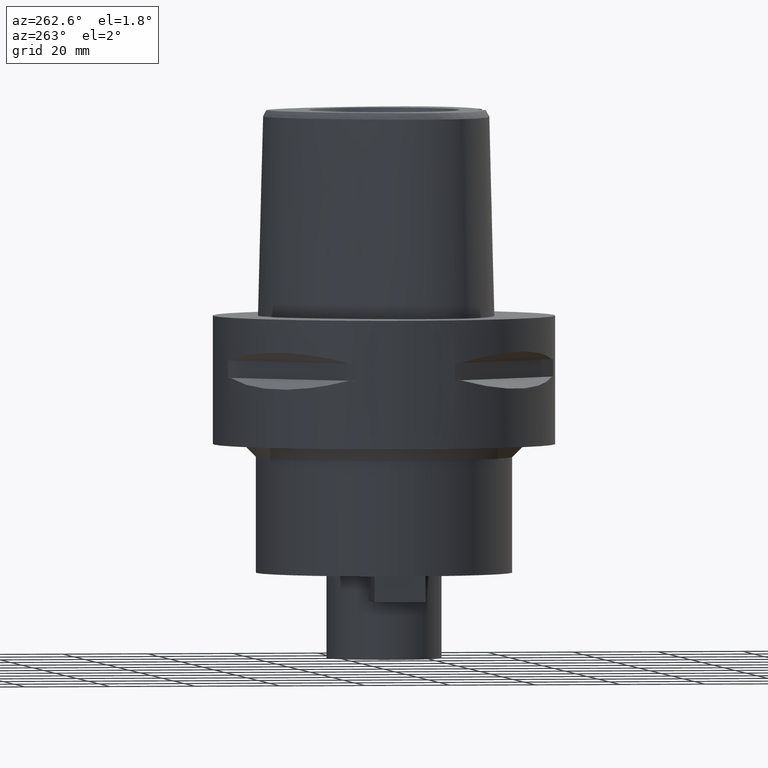
[diagram: clean part render]
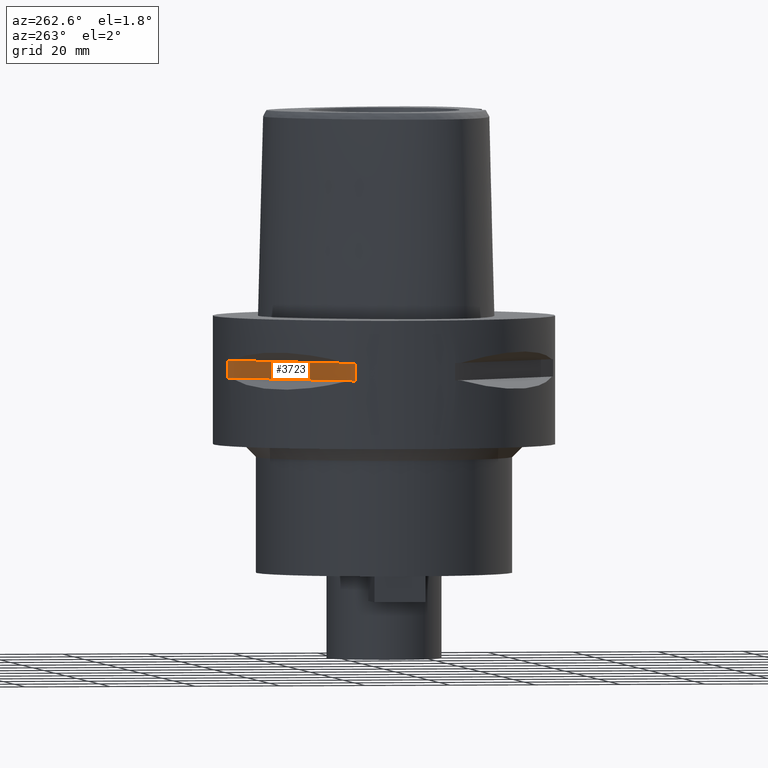
[diagram: same view with one face highlighted and labeled with its STEP entity id]
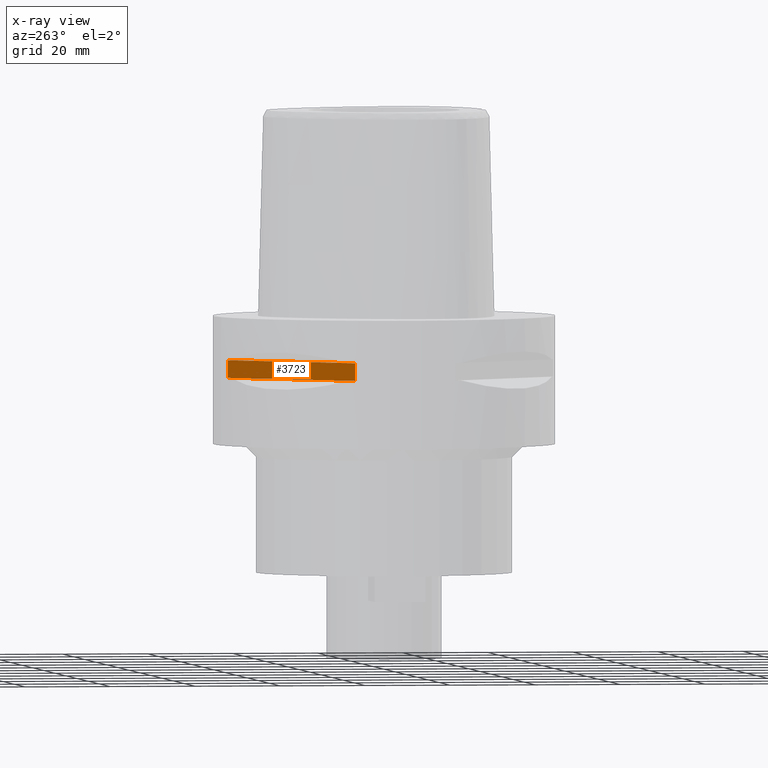
[diagram: x-ray of the same camera — body ghosted, the highlighted face saturated]
A machine part, auxiliary view. The second image highlights one B-rep face of the part: STEP entity #3723.
The next image is the same camera in x-ray: the body ghosted, the highlighted face saturated — about 0% of this face is hidden behind the body in this view.
In plain terms, the highlighted planar face has unit normal (0.7071, -0.7071, 0).
Its self-contained STEP definition (entity closure, byte-faithful):
#409=DIRECTION('',(0.E0,0.E0,-1.E0));
#410=VECTOR('',#409,4.1E0);
#411=CARTESIAN_POINT('',(-1.176033600281E1,3.823211342708E1,-9.95E0));
#412=LINE('',#411,#410);
#427=DIRECTION('',(0.E0,0.E0,1.E0));
#428=VECTOR('',#427,4.1E0);
#429=CARTESIAN_POINT('',(-3.823211342708E1,1.176033600281E1,-1.405E1));
#430=LINE('',#429,#428);
#1566=DIRECTION('',(-7.071067811865E-1,-7.071067811865E-1,0.E0));
#1567=VECTOR('',#1566,3.743674665352E1);
#1568=CARTESIAN_POINT('',(-1.176033600281E1,3.823211342708E1,-9.95E0));
#1569=LINE('',#1568,#1567);
#1589=DIRECTION('',(-7.071067811865E-1,-7.071067811865E-1,0.E0));
#1590=VECTOR('',#1589,3.743674665352E1);
#1591=CARTESIAN_POINT('',(-1.176033600281E1,3.823211342708E1,-1.405E1));
#1592=LINE('',#1591,#1590);
#1706=CARTESIAN_POINT('',(-1.176033600281E1,3.823211342708E1,-9.95E0));
#1707=VERTEX_POINT('',#1706);
#1708=CARTESIAN_POINT('',(-1.176033600281E1,3.823211342708E1,-1.405E1));
#1709=VERTEX_POINT('',#1708);
#1713=CARTESIAN_POINT('',(-3.823211342708E1,1.176033600281E1,-1.405E1));
#1714=VERTEX_POINT('',#1713);
#1715=CARTESIAN_POINT('',(-3.823211342708E1,1.176033600281E1,-9.95E0));
#1716=VERTEX_POINT('',#1715);
#3711=CARTESIAN_POINT('',(-4.267389424461E1,7.318555185281E0,-9.95E0));
#3712=DIRECTION('',(7.071067811865E-1,-7.071067811865E-1,0.E0));
#3713=DIRECTION('',(0.E0,0.E0,-1.E0));
#3714=AXIS2_PLACEMENT_3D('',#3711,#3712,#3713);
#3715=PLANE('',#3714);
#3716=ORIENTED_EDGE('',*,*,#2652,.F.);
#3718=ORIENTED_EDGE('',*,*,#3717,.F.);
#3719=ORIENTED_EDGE('',*,*,#2644,.F.);
#3720=ORIENTED_EDGE('',*,*,#3704,.T.);
#3721=EDGE_LOOP('',(#3716,#3718,#3719,#3720));
#3722=FACE_OUTER_BOUND('',#3721,.F.);
#2644=EDGE_CURVE('',#1707,#1709,#412,.T.);
#2652=EDGE_CURVE('',#1714,#1716,#430,.T.);
#3704=EDGE_CURVE('',#1707,#1716,#1569,.T.);
#3717=EDGE_CURVE('',#1709,#1714,#1592,.T.);
#3723=ADVANCED_FACE('',(#3722),#3715,.F.);